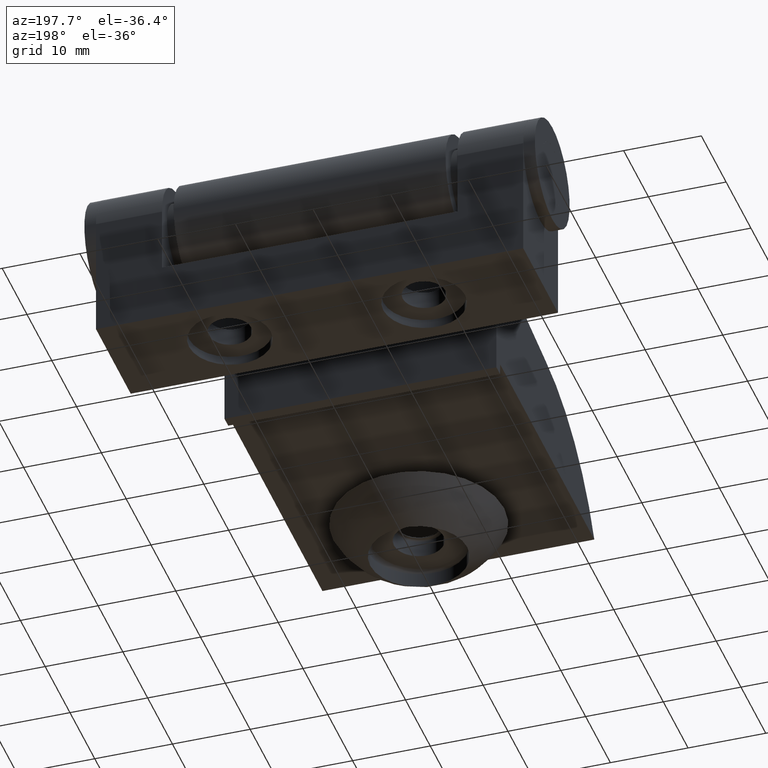
[diagram: clean part render]
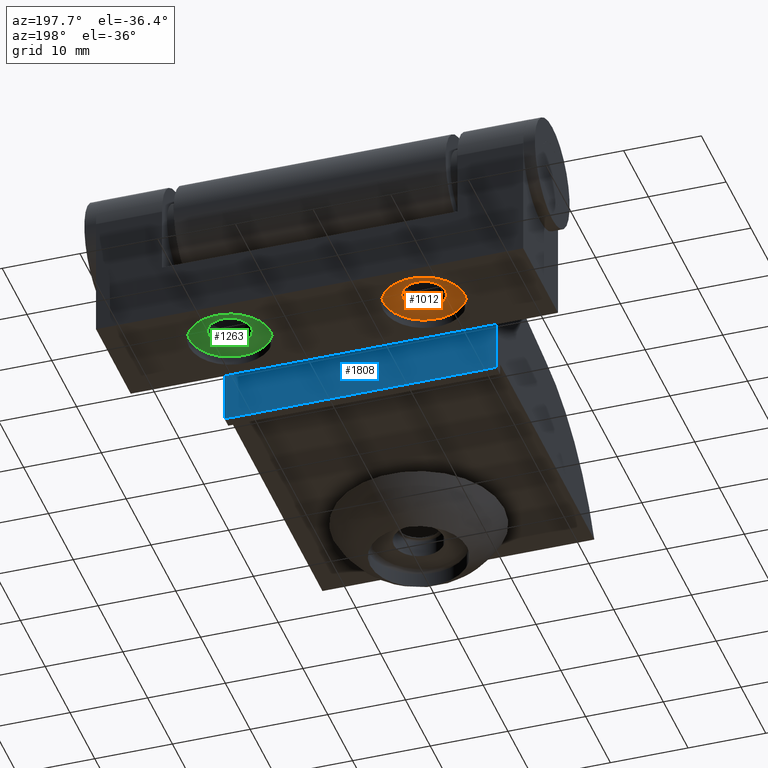
[diagram: same view with three faces highlighted in distinct colors, each labeled with its STEP entity id]
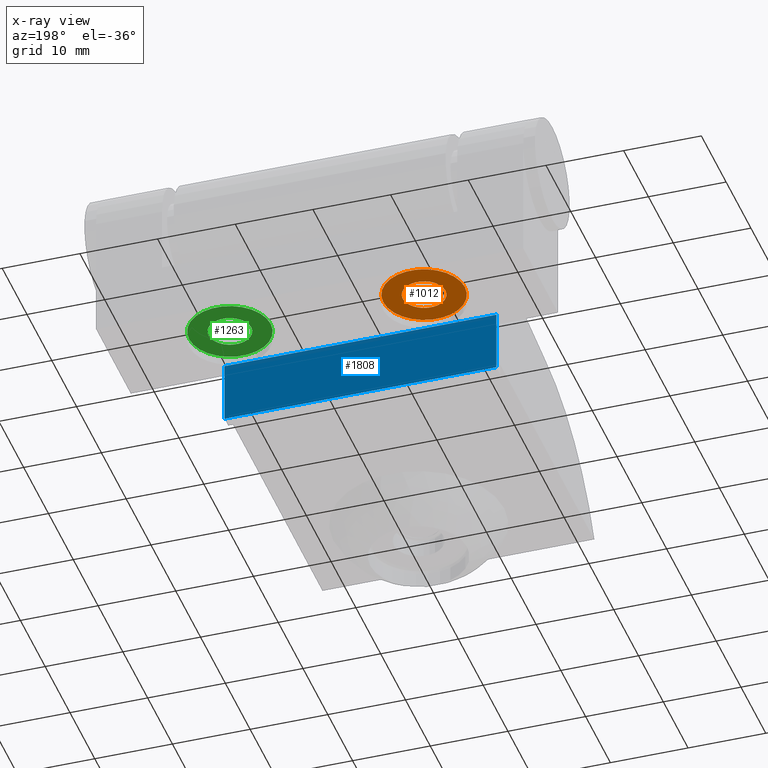
[diagram: x-ray of the same camera — body ghosted, the three highlighted faces saturated]
A machine part, auxiliary view with three faces highlighted in distinct colors.
The next image is the same camera in x-ray (body ghosted, the three faces saturated) — at least one of them is partly hidden behind the body in this view.
Their STEP definitions:

[orange] entity #1012 — the highlighted planar face has unit normal (0, 0, 1).
#953=CARTESIAN_POINT('',(-15.250000000000000,-7.0,1.200000000000046));
#954=VERTEX_POINT('',#953);
#961=CARTESIAN_POINT('',(-9.750000000000000,-7.0,1.200000000000046));
#962=VERTEX_POINT('',#961);
#963=CARTESIAN_POINT('',(-12.500000000000000,-7.0,1.200000000000046));
#964=DIRECTION('',(0.0,-6.123234E-017,-1.0));
#965=DIRECTION('',(-1.0,0.0,0.0));
#966=AXIS2_PLACEMENT_3D('',#963,#964,#965);
#967=CIRCLE('',#966,2.750000000000000);
#968=EDGE_CURVE('',#954,#962,#967,.T.);
#970=CARTESIAN_POINT('',(-12.500000000000000,-7.0,1.200000000000046));
#971=DIRECTION('',(0.0,-6.123234E-017,-1.0));
#972=DIRECTION('',(-1.0,0.0,0.0));
#973=AXIS2_PLACEMENT_3D('',#970,#971,#972);
#974=CIRCLE('',#973,2.750000000000000);
#975=EDGE_CURVE('',#962,#954,#974,.T.);
#983=CARTESIAN_POINT('',(-2.0,-17.500000000000000,1.200000000000047));
#984=DIRECTION('',(0.0,0.0,1.0));
#985=DIRECTION('',(0.0,1.0,0.0));
#986=AXIS2_PLACEMENT_3D('',#983,#984,#985);
#987=PLANE('',#986);
#988=CARTESIAN_POINT('',(-17.750000000000000,-7.0,1.200000000000046));
#989=VERTEX_POINT('',#988);
#990=CARTESIAN_POINT('',(-7.250000000000000,-7.0,1.200000000000046));
#991=VERTEX_POINT('',#990);
#992=CARTESIAN_POINT('',(-12.500000000000000,-7.0,1.200000000000046));
#993=DIRECTION('',(0.0,-6.123234E-017,-1.0));
#994=DIRECTION('',(-1.0,0.0,0.0));
#995=AXIS2_PLACEMENT_3D('',#992,#993,#994);
#996=CIRCLE('',#995,5.250000000000000);
#997=EDGE_CURVE('',#989,#991,#996,.T.);
#998=ORIENTED_EDGE('',*,*,#997,.T.);
#999=CARTESIAN_POINT('',(-12.500000000000000,-7.0,1.200000000000046));
#1000=DIRECTION('',(0.0,-6.123234E-017,-1.0));
#1001=DIRECTION('',(-1.0,0.0,0.0));
#1002=AXIS2_PLACEMENT_3D('',#999,#1000,#1001);
#1003=CIRCLE('',#1002,5.250000000000000);
#1004=EDGE_CURVE('',#991,#989,#1003,.T.);
#1005=ORIENTED_EDGE('',*,*,#1004,.T.);
#1006=EDGE_LOOP('',(#998,#1005));
#1007=FACE_OUTER_BOUND('',#1006,.T.);
#1008=ORIENTED_EDGE('',*,*,#975,.F.);
#1009=ORIENTED_EDGE('',*,*,#968,.F.);
#1010=EDGE_LOOP('',(#1008,#1009));
#1011=FACE_BOUND('',#1010,.T.);
#1012=ADVANCED_FACE('',(#1007,#1011),#987,.F.);

[blue] entity #1808 — the highlighted planar face has unit normal (0, 1, 0).
#1750=CARTESIAN_POINT('',(17.500000000000000,-20.500000000000000,6.500000000000001));
#1751=VERTEX_POINT('',#1750);
#1759=CARTESIAN_POINT('',(-17.500000000000000,-20.500000000000000,6.500000000000001));
#1760=VERTEX_POINT('',#1759);
#1761=CARTESIAN_POINT('',(17.500000000000000,-20.500000000000000,6.500000000000001));
#1762=DIRECTION('',(-1.0,0.0,0.0));
#1763=VECTOR('',#1762,35.0);
#1764=LINE('',#1761,#1763);
#1765=EDGE_CURVE('',#1751,#1760,#1764,.T.);
#1778=CARTESIAN_POINT('',(17.500000000000000,-20.500000000000000,6.500000000000001));
#1779=DIRECTION('',(0.0,1.0,0.0));
#1780=DIRECTION('',(0.0,0.0,-1.0));
#1781=AXIS2_PLACEMENT_3D('',#1778,#1779,#1780);
#1782=PLANE('',#1781);
#1783=CARTESIAN_POINT('',(17.500000000000000,-20.500000000000000,-1.499999999999999));
#1784=VERTEX_POINT('',#1783);
#1785=CARTESIAN_POINT('',(17.500000000000000,-20.500000000000000,6.500000000000002));
#1786=DIRECTION('',(0.0,0.0,-1.0));
#1787=VECTOR('',#1786,8.0);
#1788=LINE('',#1785,#1787);
#1789=EDGE_CURVE('',#1751,#1784,#1788,.T.);
#1790=ORIENTED_EDGE('',*,*,#1789,.T.);
#1791=CARTESIAN_POINT('',(-17.500000000000000,-20.500000000000000,-1.499999999999999));
#1792=VERTEX_POINT('',#1791);
#1793=CARTESIAN_POINT('',(17.500000000000000,-20.500000000000000,-1.499999999999999));
#1794=DIRECTION('',(-1.0,0.0,0.0));
#1795=VECTOR('',#1794,35.0);
#1796=LINE('',#1793,#1795);
#1797=EDGE_CURVE('',#1784,#1792,#1796,.T.);
#1798=ORIENTED_EDGE('',*,*,#1797,.T.);
#1799=CARTESIAN_POINT('',(-17.500000000000000,-20.500000000000000,6.500000000000002));
#1800=DIRECTION('',(0.0,0.0,-1.0));
#1801=VECTOR('',#1800,8.0);
#1802=LINE('',#1799,#1801);
#1803=EDGE_CURVE('',#1760,#1792,#1802,.T.);
#1804=ORIENTED_EDGE('',*,*,#1803,.F.);
#1805=ORIENTED_EDGE('',*,*,#1765,.F.);
#1806=EDGE_LOOP('',(#1790,#1798,#1804,#1805));
#1807=FACE_OUTER_BOUND('',#1806,.T.);
#1808=ADVANCED_FACE('',(#1807),#1782,.T.);

[green] entity #1263 — the highlighted planar face has unit normal (0, 0, 1).
#1204=CARTESIAN_POINT('',(9.750000000000000,-7.0,1.200000000000046));
#1205=VERTEX_POINT('',#1204);
#1212=CARTESIAN_POINT('',(15.250000000000000,-7.0,1.200000000000046));
#1213=VERTEX_POINT('',#1212);
#1214=CARTESIAN_POINT('',(12.500000000000000,-7.0,1.200000000000046));
#1215=DIRECTION('',(0.0,-6.123234E-017,-1.0));
#1216=DIRECTION('',(-1.0,0.0,0.0));
#1217=AXIS2_PLACEMENT_3D('',#1214,#1215,#1216);
#1218=CIRCLE('',#1217,2.750000000000000);
#1219=EDGE_CURVE('',#1205,#1213,#1218,.T.);
#1221=CARTESIAN_POINT('',(12.500000000000000,-7.0,1.200000000000046));
#1222=DIRECTION('',(0.0,-6.123234E-017,-1.0));
#1223=DIRECTION('',(-1.0,0.0,0.0));
#1224=AXIS2_PLACEMENT_3D('',#1221,#1222,#1223);
#1225=CIRCLE('',#1224,2.750000000000000);
#1226=EDGE_CURVE('',#1213,#1205,#1225,.T.);
#1234=CARTESIAN_POINT('',(23.0,-17.500000000000000,1.200000000000047));
#1235=DIRECTION('',(0.0,0.0,1.0));
#1236=DIRECTION('',(0.0,1.0,0.0));
#1237=AXIS2_PLACEMENT_3D('',#1234,#1235,#1236);
#1238=PLANE('',#1237);
#1239=CARTESIAN_POINT('',(7.250000000000000,-7.0,1.200000000000046));
#1240=VERTEX_POINT('',#1239);
#1241=CARTESIAN_POINT('',(17.750000000000000,-7.0,1.200000000000046));
#1242=VERTEX_POINT('',#1241);
#1243=CARTESIAN_POINT('',(12.500000000000000,-7.0,1.200000000000046));
#1244=DIRECTION('',(0.0,-6.123234E-017,-1.0));
#1245=DIRECTION('',(-1.0,0.0,0.0));
#1246=AXIS2_PLACEMENT_3D('',#1243,#1244,#1245);
#1247=CIRCLE('',#1246,5.250000000000000);
#1248=EDGE_CURVE('',#1240,#1242,#1247,.T.);
#1249=ORIENTED_EDGE('',*,*,#1248,.T.);
#1250=CARTESIAN_POINT('',(12.500000000000000,-7.0,1.200000000000046));
#1251=DIRECTION('',(0.0,-6.123234E-017,-1.0));
#1252=DIRECTION('',(-1.0,0.0,0.0));
#1253=AXIS2_PLACEMENT_3D('',#1250,#1251,#1252);
#1254=CIRCLE('',#1253,5.250000000000000);
#1255=EDGE_CURVE('',#1242,#1240,#1254,.T.);
#1256=ORIENTED_EDGE('',*,*,#1255,.T.);
#1257=EDGE_LOOP('',(#1249,#1256));
#1258=FACE_OUTER_BOUND('',#1257,.T.);
#1259=ORIENTED_EDGE('',*,*,#1226,.F.);
#1260=ORIENTED_EDGE('',*,*,#1219,.F.);
#1261=EDGE_LOOP('',(#1259,#1260));
#1262=FACE_BOUND('',#1261,.T.);
#1263=ADVANCED_FACE('',(#1258,#1262),#1238,.F.);